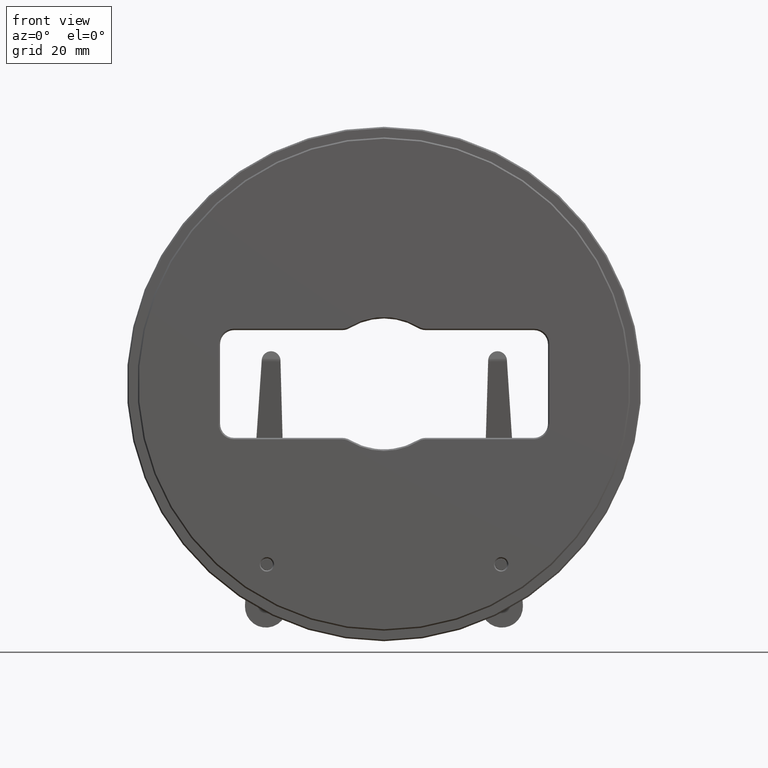
[diagram: clean part render]
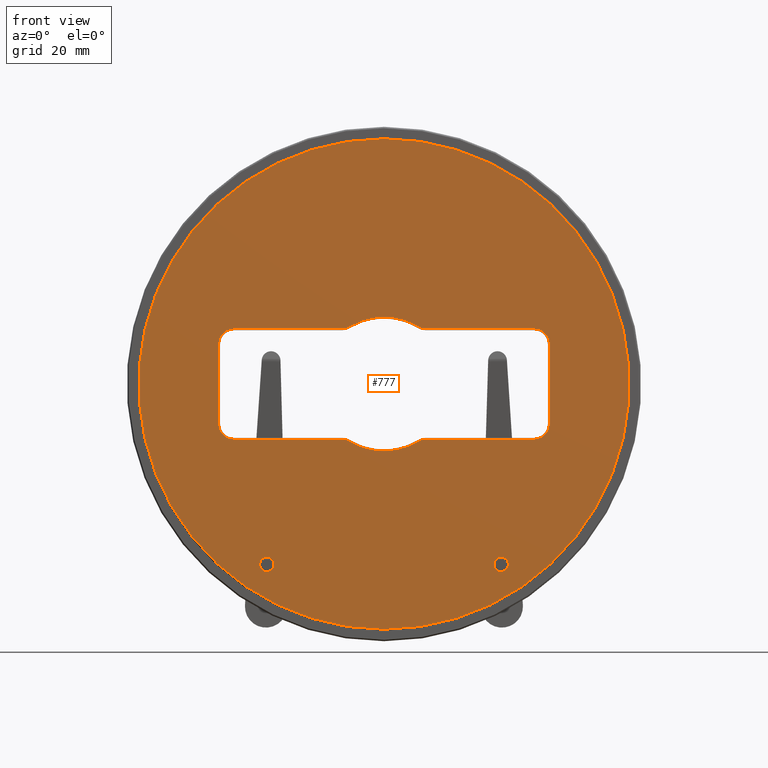
[diagram: same view with one face highlighted and labeled with its STEP entity id]
A machine part, front view. The second image highlights one B-rep face of the part: STEP entity #777.
In plain terms, the highlighted planar face has unit normal (0, 1, 0).
Its self-contained STEP definition (entity closure, byte-faithful):
#15 = EDGE_LOOP ( 'NONE', ( #4875, #4083, #5907, #1119, #657, #3484, #5938, #3142, #4524, #6734, #3735, #5699, #4335, #1858, #3358, #5726, #4916 ) ) ;
#54 = CIRCLE ( 'NONE', #6608, 1.549999999999982059 ) ;
#63 = DIRECTION ( 'NONE',  ( 0.000000000000000000, 0.000000000000000000, 1.000000000000000000 ) ) ;
#71 = CARTESIAN_POINT ( 'NONE',  ( 0.000000000000000000, -2.000000000000000000, -11.79999999999999361 ) ) ;
#128 = VERTEX_POINT ( 'NONE', #7076 ) ;
#221 = AXIS2_PLACEMENT_3D ( 'NONE', #6022, #7227, #63 ) ;
#244 = EDGE_LOOP ( 'NONE', ( #1455, #3512 ) ) ;
#281 = EDGE_LOOP ( 'NONE', ( #1677, #4221 ) ) ;
#340 = CARTESIAN_POINT ( 'NONE',  ( 8.874119674649419309, -2.000000000000000000, 11.79999999999999538 ) ) ;
#476 = EDGE_CURVE ( 'NONE', #4295, #3438, #2921, .T. ) ;
#579 = ORIENTED_EDGE ( 'NONE', *, *, #2731, .T. ) ;
#622 = CARTESIAN_POINT ( 'NONE',  ( 0.000000000000000000, -2.000000000000000000, 0.000000000000000000 ) ) ;
#657 = ORIENTED_EDGE ( 'NONE', *, *, #3897, .T. ) ;
#658 = LINE ( 'NONE', #71, #3841 ) ;
#665 = CARTESIAN_POINT ( 'NONE',  ( 25.00000000000000000, -2.000000000000000000, -36.95000000000001705 ) ) ;
#777 = ADVANCED_FACE ( 'NONE', ( #7086, #6453, #1074, #3997 ), #2285, .F. ) ;
#841 = CIRCLE ( 'NONE', #7765, 2.700000000000004619 ) ;
#941 = CARTESIAN_POINT ( 'NONE',  ( -32.00000000000000000, -2.000000000000000000, -11.79999999999999538 ) ) ;
#943 = CARTESIAN_POINT ( 'NONE',  ( 8.874119674649421086, -2.000000000000000000, 14.50000000000000178 ) ) ;
#978 = CARTESIAN_POINT ( 'NONE',  ( 25.00000000000000000, -2.000000000000000000, -38.50000000000000000 ) ) ;
#1007 = DIRECTION ( 'NONE',  ( 0.000000000000000000, 0.000000000000000000, 1.000000000000000000 ) ) ;
#1024 = VERTEX_POINT ( 'NONE', #4179 ) ;
#1065 = DIRECTION ( 'NONE',  ( 0.000000000000000000, 1.000000000000000000, 0.000000000000000000 ) ) ;
#1074 = FACE_OUTER_BOUND ( 'NONE', #281, .T. ) ;
#1119 = ORIENTED_EDGE ( 'NONE', *, *, #6912, .T. ) ;
#1216 = EDGE_CURVE ( 'NONE', #6856, #1024, #3697, .T. ) ;
#1221 = CARTESIAN_POINT ( 'NONE',  ( 0.000000000000000000, -2.000000000000000000, 11.79999999999999538 ) ) ;
#1245 = AXIS2_PLACEMENT_3D ( 'NONE', #5916, #1065, #5836 ) ;
#1310 = EDGE_CURVE ( 'NONE', #5957, #4857, #54, .T. ) ;
#1339 = DIRECTION ( 'NONE',  ( 0.000000000000000000, 1.000000000000000000, 0.000000000000000000 ) ) ;
#1364 = DIRECTION ( 'NONE',  ( 1.000000000000000000, 0.000000000000000000, 0.000000000000000000 ) ) ;
#1379 = DIRECTION ( 'NONE',  ( 0.000000000000000000, 0.000000000000000000, 1.000000000000000000 ) ) ;
#1455 = ORIENTED_EDGE ( 'NONE', *, *, #1310, .T. ) ;
#1456 = EDGE_CURVE ( 'NONE', #3632, #3931, #2937, .T. ) ;
#1468 = VERTEX_POINT ( 'NONE', #665 ) ;
#1505 = DIRECTION ( 'NONE',  ( -0.000000000000000000, -1.000000000000000000, -0.000000000000000000 ) ) ;
#1506 = CARTESIAN_POINT ( 'NONE',  ( -25.00000000000000000, -2.000000000000000000, -40.04999999999998295 ) ) ;
#1617 = CIRCLE ( 'NONE', #1245, 3.299999999999997158 ) ;
#1677 = ORIENTED_EDGE ( 'NONE', *, *, #2958, .T. ) ;
#1713 = DIRECTION ( 'NONE',  ( 0.000000000000000000, 0.000000000000000000, 1.000000000000000000 ) ) ;
#1852 = CARTESIAN_POINT ( 'NONE',  ( 0.000000000000000000, -2.000000000000000000, 0.000000000000000000 ) ) ;
#1854 = AXIS2_PLACEMENT_3D ( 'NONE', #2981, #7207, #5365 ) ;
#1858 = ORIENTED_EDGE ( 'NONE', *, *, #2415, .T. ) ;
#1936 = CARTESIAN_POINT ( 'NONE',  ( 32.00000000000000000, -2.000000000000000000, -8.499999999999996447 ) ) ;
#1960 = DIRECTION ( 'NONE',  ( 0.000000000000000000, 0.000000000000000000, 1.000000000000000000 ) ) ;
#1964 = DIRECTION ( 'NONE',  ( -0.000000000000000000, -1.000000000000000000, -0.000000000000000000 ) ) ;
#1967 = AXIS2_PLACEMENT_3D ( 'NONE', #2113, #6382, #1007 ) ;
#1983 = EDGE_CURVE ( 'NONE', #128, #3691, #3233, .T. ) ;
#2003 = AXIS2_PLACEMENT_3D ( 'NONE', #2060, #2209, #2644 ) ;
#2008 = LINE ( 'NONE', #4410, #5885 ) ;
#2060 = CARTESIAN_POINT ( 'NONE',  ( -32.00000000000000000, -2.000000000000000000, -8.499999999999996447 ) ) ;
#2068 = AXIS2_PLACEMENT_3D ( 'NONE', #622, #2436, #4848 ) ;
#2088 = EDGE_LOOP ( 'NONE', ( #579, #3297 ) ) ;
#2098 = AXIS2_PLACEMENT_3D ( 'NONE', #1852, #5360, #6034 ) ;
#2113 = CARTESIAN_POINT ( 'NONE',  ( 25.00000000000000000, -2.000000000000000000, -38.50000000000000000 ) ) ;
#2148 = VERTEX_POINT ( 'NONE', #3272 ) ;
#2205 = CARTESIAN_POINT ( 'NONE',  ( -7.464700667499220899, -2.000000000000000000, -12.19705882352940662 ) ) ;
#2209 = DIRECTION ( 'NONE',  ( 0.000000000000000000, 1.000000000000000000, 0.000000000000000000 ) ) ;
#2285 = PLANE ( 'NONE',  #3827 ) ;
#2332 = CIRCLE ( 'NONE', #2098, 52.35000000000002984 ) ;
#2392 = EDGE_CURVE ( 'NONE', #1024, #5173, #658, .T. ) ;
#2397 = DIRECTION ( 'NONE',  ( -0.000000000000000000, -1.000000000000000000, -0.000000000000000000 ) ) ;
#2415 = EDGE_CURVE ( 'NONE', #7773, #3632, #6501, .T. ) ;
#2436 = DIRECTION ( 'NONE',  ( -0.000000000000000000, -1.000000000000000000, -0.000000000000000000 ) ) ;
#2476 = DIRECTION ( 'NONE',  ( -1.000000000000000000, 0.000000000000000000, 0.000000000000000000 ) ) ;
#2578 = DIRECTION ( 'NONE',  ( 0.000000000000000000, 0.000000000000000000, -1.000000000000000000 ) ) ;
#2600 = CARTESIAN_POINT ( 'NONE',  ( 8.874119674649426415, -2.000000000000000000, -11.79999999999999361 ) ) ;
#2644 = DIRECTION ( 'NONE',  ( 0.000000000000000000, 0.000000000000000000, 1.000000000000000000 ) ) ;
#2692 = EDGE_CURVE ( 'NONE', #6578, #4772, #4736, .T. ) ;
#2731 = EDGE_CURVE ( 'NONE', #5052, #1468, #6766, .T. ) ;
#2784 = EDGE_CURVE ( 'NONE', #1468, #5052, #6256, .T. ) ;
#2807 = AXIS2_PLACEMENT_3D ( 'NONE', #6568, #4716, #6532 ) ;
#2838 = CARTESIAN_POINT ( 'NONE',  ( -7.464700667499216458, -2.000000000000000000, 12.19705882352941018 ) ) ;
#2843 = DIRECTION ( 'NONE',  ( 0.000000000000000000, 1.000000000000000000, 0.000000000000000000 ) ) ;
#2894 = CARTESIAN_POINT ( 'NONE',  ( -25.00000000000000000, -2.000000000000000000, -36.95000000000001705 ) ) ;
#2921 = CIRCLE ( 'NONE', #2068, 52.35000000000002984 ) ;
#2937 = LINE ( 'NONE', #1221, #6368 ) ;
#2958 = EDGE_CURVE ( 'NONE', #3438, #4295, #2332, .T. ) ;
#2980 = EDGE_CURVE ( 'NONE', #3691, #4208, #841, .T. ) ;
#2981 = CARTESIAN_POINT ( 'NONE',  ( -32.00000000000000000, -2.000000000000000000, 8.500000000000000000 ) ) ;
#3071 = CARTESIAN_POINT ( 'NONE',  ( 32.00000000000000000, -2.000000000000000000, -11.79999999999999538 ) ) ;
#3082 = AXIS2_PLACEMENT_3D ( 'NONE', #943, #3778, #1379 ) ;
#3142 = ORIENTED_EDGE ( 'NONE', *, *, #4582, .T. ) ;
#3162 = DIRECTION ( 'NONE',  ( -6.424901762877047718E-16, 0.000000000000000000, 1.000000000000000000 ) ) ;
#3225 = AXIS2_PLACEMENT_3D ( 'NONE', #5486, #6591, #3618 ) ;
#3233 = LINE ( 'NONE', #3797, #5479 ) ;
#3272 = CARTESIAN_POINT ( 'NONE',  ( -35.29999999999999716, -2.000000000000000000, -8.499999999999996447 ) ) ;
#3297 = ORIENTED_EDGE ( 'NONE', *, *, #2784, .T. ) ;
#3314 = CIRCLE ( 'NONE', #2807, 14.29999999999999538 ) ;
#3358 = ORIENTED_EDGE ( 'NONE', *, *, #1456, .T. ) ;
#3415 = CARTESIAN_POINT ( 'NONE',  ( -8.874119674649428191, -2.000000000000000000, -14.49999999999999822 ) ) ;
#3426 = CARTESIAN_POINT ( 'NONE',  ( 0.000000000000000000, -2.000000000000000000, 0.000000000000000000 ) ) ;
#3438 = VERTEX_POINT ( 'NONE', #4992 ) ;
#3454 = DIRECTION ( 'NONE',  ( -4.497431234013933304E-15, 0.000000000000000000, 1.000000000000000000 ) ) ;
#3483 = EDGE_CURVE ( 'NONE', #4616, #5066, #6182, .T. ) ;
#3484 = ORIENTED_EDGE ( 'NONE', *, *, #1216, .T. ) ;
#3512 = ORIENTED_EDGE ( 'NONE', *, *, #6373, .T. ) ;
#3569 = CARTESIAN_POINT ( 'NONE',  ( -8.874119674649421086, -2.000000000000000000, 14.50000000000000178 ) ) ;
#3618 = DIRECTION ( 'NONE',  ( 0.000000000000000000, 0.000000000000000000, 1.000000000000000000 ) ) ;
#3632 = VERTEX_POINT ( 'NONE', #340 ) ;
#3654 = DIRECTION ( 'NONE',  ( 0.000000000000000000, 0.000000000000000000, 1.000000000000000000 ) ) ;
#3674 = CARTESIAN_POINT ( 'NONE',  ( 32.00000000000000000, -2.000000000000000000, 11.79999999999999538 ) ) ;
#3691 = VERTEX_POINT ( 'NONE', #7653 ) ;
#3697 = CIRCLE ( 'NONE', #4197, 2.700000000000006395 ) ;
#3735 = ORIENTED_EDGE ( 'NONE', *, *, #1983, .T. ) ;
#3778 = DIRECTION ( 'NONE',  ( -0.000000000000000000, -1.000000000000000000, -0.000000000000000000 ) ) ;
#3797 = CARTESIAN_POINT ( 'NONE',  ( 0.000000000000000000, -2.000000000000000000, 11.79999999999999538 ) ) ;
#3827 = AXIS2_PLACEMENT_3D ( 'NONE', #3426, #6384, #6489 ) ;
#3841 = VECTOR ( 'NONE', #2476, 1000.000000000000000 ) ;
#3897 = EDGE_CURVE ( 'NONE', #5274, #6856, #3314, .T. ) ;
#3931 = VERTEX_POINT ( 'NONE', #3674 ) ;
#3960 = CARTESIAN_POINT ( 'NONE',  ( 25.00000000000000000, -2.000000000000000000, -40.04999999999998295 ) ) ;
#3997 = FACE_BOUND ( 'NONE', #15, .T. ) ;
#3999 = CIRCLE ( 'NONE', #6918, 14.29999999999999538 ) ;
#4083 = ORIENTED_EDGE ( 'NONE', *, *, #6322, .T. ) ;
#4179 = CARTESIAN_POINT ( 'NONE',  ( -8.874119674649426415, -2.000000000000000000, -11.79999999999999361 ) ) ;
#4197 = AXIS2_PLACEMENT_3D ( 'NONE', #3415, #1505, #3454 ) ;
#4208 = VERTEX_POINT ( 'NONE', #2838 ) ;
#4218 = DIRECTION ( 'NONE',  ( -1.000000000000000000, 0.000000000000000000, 0.000000000000000000 ) ) ;
#4221 = ORIENTED_EDGE ( 'NONE', *, *, #476, .T. ) ;
#4229 = CARTESIAN_POINT ( 'NONE',  ( -35.29999999999999716, -2.000000000000000000, 8.500000000000000000 ) ) ;
#4295 = VERTEX_POINT ( 'NONE', #6487 ) ;
#4335 = ORIENTED_EDGE ( 'NONE', *, *, #5982, .T. ) ;
#4410 = CARTESIAN_POINT ( 'NONE',  ( 0.000000000000000000, -2.000000000000000000, -11.79999999999999361 ) ) ;
#4440 = CARTESIAN_POINT ( 'NONE',  ( 35.29999999999999716, -2.000000000000000000, 0.000000000000000000 ) ) ;
#4524 = ORIENTED_EDGE ( 'NONE', *, *, #4724, .T. ) ;
#4551 = DIRECTION ( 'NONE',  ( 0.000000000000000000, 0.000000000000000000, 1.000000000000000000 ) ) ;
#4582 = EDGE_CURVE ( 'NONE', #5173, #2148, #4773, .T. ) ;
#4616 = VERTEX_POINT ( 'NONE', #5053 ) ;
#4716 = DIRECTION ( 'NONE',  ( 0.000000000000000000, 1.000000000000000000, 0.000000000000000000 ) ) ;
#4724 = EDGE_CURVE ( 'NONE', #2148, #5718, #6889, .T. ) ;
#4736 = CIRCLE ( 'NONE', #5354, 2.700000000000006395 ) ;
#4759 = CIRCLE ( 'NONE', #221, 14.29999999999999538 ) ;
#4772 = VERTEX_POINT ( 'NONE', #5876 ) ;
#4773 = CIRCLE ( 'NONE', #2003, 3.299999999999997158 ) ;
#4786 = EDGE_CURVE ( 'NONE', #3931, #4616, #1617, .T. ) ;
#4848 = DIRECTION ( 'NONE',  ( 0.000000000000000000, 0.000000000000000000, 1.000000000000000000 ) ) ;
#4857 = VERTEX_POINT ( 'NONE', #2894 ) ;
#4875 = ORIENTED_EDGE ( 'NONE', *, *, #5026, .T. ) ;
#4916 = ORIENTED_EDGE ( 'NONE', *, *, #3483, .T. ) ;
#4992 = CARTESIAN_POINT ( 'NONE',  ( 0.000000000000000000, -2.000000000000000000, 52.35000000000002984 ) ) ;
#5026 = EDGE_CURVE ( 'NONE', #5066, #5767, #7686, .T. ) ;
#5052 = VERTEX_POINT ( 'NONE', #3960 ) ;
#5053 = CARTESIAN_POINT ( 'NONE',  ( 35.29999999999999716, -2.000000000000000000, 8.499999999999998224 ) ) ;
#5066 = VERTEX_POINT ( 'NONE', #7539 ) ;
#5173 = VERTEX_POINT ( 'NONE', #941 ) ;
#5256 = CIRCLE ( 'NONE', #1854, 3.299999999999997158 ) ;
#5274 = VERTEX_POINT ( 'NONE', #7657 ) ;
#5298 = CARTESIAN_POINT ( 'NONE',  ( 0.000000000000000000, -2.000000000000000000, 0.000000000000000000 ) ) ;
#5354 = AXIS2_PLACEMENT_3D ( 'NONE', #7425, #1964, #3162 ) ;
#5360 = DIRECTION ( 'NONE',  ( -0.000000000000000000, -1.000000000000000000, -0.000000000000000000 ) ) ;
#5365 = DIRECTION ( 'NONE',  ( 0.000000000000000000, 0.000000000000000000, 1.000000000000000000 ) ) ;
#5479 = VECTOR ( 'NONE', #1364, 1000.000000000000000 ) ;
#5486 = CARTESIAN_POINT ( 'NONE',  ( -25.00000000000000000, -2.000000000000000000, -38.50000000000000000 ) ) ;
#5699 = ORIENTED_EDGE ( 'NONE', *, *, #2980, .T. ) ;
#5718 = VERTEX_POINT ( 'NONE', #4229 ) ;
#5726 = ORIENTED_EDGE ( 'NONE', *, *, #4786, .T. ) ;
#5767 = VERTEX_POINT ( 'NONE', #3071 ) ;
#5836 = DIRECTION ( 'NONE',  ( 0.000000000000000000, 0.000000000000000000, 1.000000000000000000 ) ) ;
#5876 = CARTESIAN_POINT ( 'NONE',  ( 7.464700667499220899, -2.000000000000000000, -12.19705882352940662 ) ) ;
#5885 = VECTOR ( 'NONE', #4218, 1000.000000000000000 ) ;
#5907 = ORIENTED_EDGE ( 'NONE', *, *, #2692, .T. ) ;
#5916 = CARTESIAN_POINT ( 'NONE',  ( 32.00000000000000000, -2.000000000000000000, 8.499999999999998224 ) ) ;
#5938 = ORIENTED_EDGE ( 'NONE', *, *, #2392, .T. ) ;
#5957 = VERTEX_POINT ( 'NONE', #1506 ) ;
#5975 = DIRECTION ( 'NONE',  ( 0.000000000000000000, 0.000000000000000000, 1.000000000000000000 ) ) ;
#5982 = EDGE_CURVE ( 'NONE', #4208, #7773, #4759, .T. ) ;
#5999 = VECTOR ( 'NONE', #2578, 1000.000000000000000 ) ;
#6022 = CARTESIAN_POINT ( 'NONE',  ( 0.000000000000000000, -2.000000000000000000, 0.000000000000000000 ) ) ;
#6034 = DIRECTION ( 'NONE',  ( 0.000000000000000000, 0.000000000000000000, 1.000000000000000000 ) ) ;
#6170 = AXIS2_PLACEMENT_3D ( 'NONE', #1936, #1339, #1960 ) ;
#6182 = LINE ( 'NONE', #4440, #5999 ) ;
#6256 = CIRCLE ( 'NONE', #1967, 1.549999999999982059 ) ;
#6322 = EDGE_CURVE ( 'NONE', #5767, #6578, #2008, .T. ) ;
#6368 = VECTOR ( 'NONE', #7203, 1000.000000000000000 ) ;
#6373 = EDGE_CURVE ( 'NONE', #4857, #5957, #7035, .T. ) ;
#6382 = DIRECTION ( 'NONE',  ( 0.000000000000000000, 1.000000000000000000, 0.000000000000000000 ) ) ;
#6384 = DIRECTION ( 'NONE',  ( 0.000000000000000000, 1.000000000000000000, 0.000000000000000000 ) ) ;
#6411 = DIRECTION ( 'NONE',  ( 0.000000000000000000, 1.000000000000000000, 0.000000000000000000 ) ) ;
#6453 = FACE_BOUND ( 'NONE', #244, .T. ) ;
#6460 = EDGE_CURVE ( 'NONE', #5718, #128, #5256, .T. ) ;
#6487 = CARTESIAN_POINT ( 'NONE',  ( 6.429395695523604744E-15, -2.000000000000000000, -52.35000000000002984 ) ) ;
#6489 = DIRECTION ( 'NONE',  ( 0.000000000000000000, -0.000000000000000000, 1.000000000000000000 ) ) ;
#6501 = CIRCLE ( 'NONE', #3082, 2.700000000000004619 ) ;
#6532 = DIRECTION ( 'NONE',  ( 0.000000000000000000, 0.000000000000000000, 1.000000000000000000 ) ) ;
#6568 = CARTESIAN_POINT ( 'NONE',  ( 0.000000000000000000, -2.000000000000000000, 0.000000000000000000 ) ) ;
#6578 = VERTEX_POINT ( 'NONE', #2600 ) ;
#6591 = DIRECTION ( 'NONE',  ( 0.000000000000000000, 1.000000000000000000, 0.000000000000000000 ) ) ;
#6608 = AXIS2_PLACEMENT_3D ( 'NONE', #7703, #6411, #4551 ) ;
#6734 = ORIENTED_EDGE ( 'NONE', *, *, #6460, .T. ) ;
#6766 = CIRCLE ( 'NONE', #7761, 1.549999999999982059 ) ;
#6856 = VERTEX_POINT ( 'NONE', #2205 ) ;
#6889 = LINE ( 'NONE', #7634, #7439 ) ;
#6912 = EDGE_CURVE ( 'NONE', #4772, #5274, #3999, .T. ) ;
#6918 = AXIS2_PLACEMENT_3D ( 'NONE', #5298, #2843, #5975 ) ;
#6926 = DIRECTION ( 'NONE',  ( 0.000000000000000000, 0.000000000000000000, 1.000000000000000000 ) ) ;
#7035 = CIRCLE ( 'NONE', #3225, 1.549999999999982059 ) ;
#7076 = CARTESIAN_POINT ( 'NONE',  ( -32.00000000000000000, -2.000000000000000000, 11.79999999999999538 ) ) ;
#7086 = FACE_BOUND ( 'NONE', #2088, .T. ) ;
#7138 = DIRECTION ( 'NONE',  ( 0.000000000000000000, 1.000000000000000000, 0.000000000000000000 ) ) ;
#7203 = DIRECTION ( 'NONE',  ( 1.000000000000000000, 0.000000000000000000, 0.000000000000000000 ) ) ;
#7207 = DIRECTION ( 'NONE',  ( 0.000000000000000000, 1.000000000000000000, 0.000000000000000000 ) ) ;
#7227 = DIRECTION ( 'NONE',  ( 0.000000000000000000, 1.000000000000000000, 0.000000000000000000 ) ) ;
#7425 = CARTESIAN_POINT ( 'NONE',  ( 8.874119674649428191, -2.000000000000000000, -14.49999999999999822 ) ) ;
#7439 = VECTOR ( 'NONE', #6926, 1000.000000000000000 ) ;
#7498 = CARTESIAN_POINT ( 'NONE',  ( 7.464700667499216458, -2.000000000000000000, 12.19705882352941018 ) ) ;
#7539 = CARTESIAN_POINT ( 'NONE',  ( 35.29999999999999716, -2.000000000000000000, -8.499999999999996447 ) ) ;
#7634 = CARTESIAN_POINT ( 'NONE',  ( -35.29999999999999716, -2.000000000000000000, 0.000000000000000000 ) ) ;
#7653 = CARTESIAN_POINT ( 'NONE',  ( -8.874119674649419309, -2.000000000000000000, 11.79999999999999538 ) ) ;
#7657 = CARTESIAN_POINT ( 'NONE',  ( 0.000000000000000000, -2.000000000000000000, -14.29999999999999538 ) ) ;
#7686 = CIRCLE ( 'NONE', #6170, 3.299999999999997158 ) ;
#7703 = CARTESIAN_POINT ( 'NONE',  ( -25.00000000000000000, -2.000000000000000000, -38.50000000000000000 ) ) ;
#7761 = AXIS2_PLACEMENT_3D ( 'NONE', #978, #7138, #1713 ) ;
#7765 = AXIS2_PLACEMENT_3D ( 'NONE', #3569, #2397, #3654 ) ;
#7773 = VERTEX_POINT ( 'NONE', #7498 ) ;